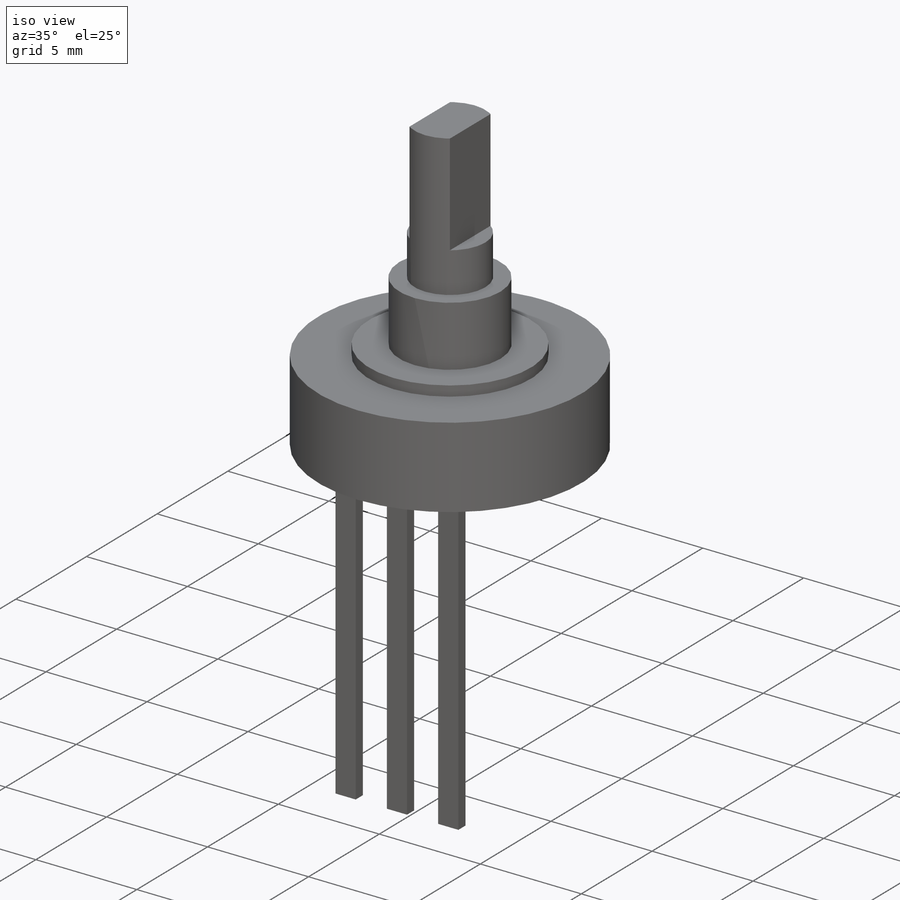
[diagram: iso view]
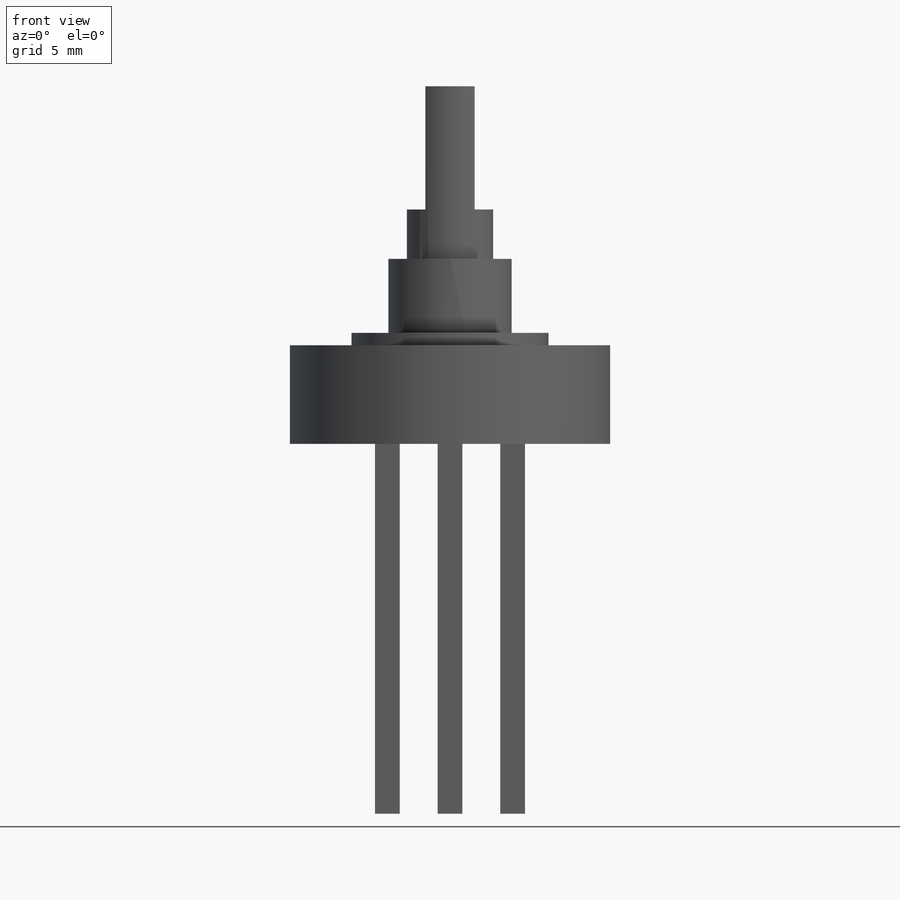
[diagram: front view]
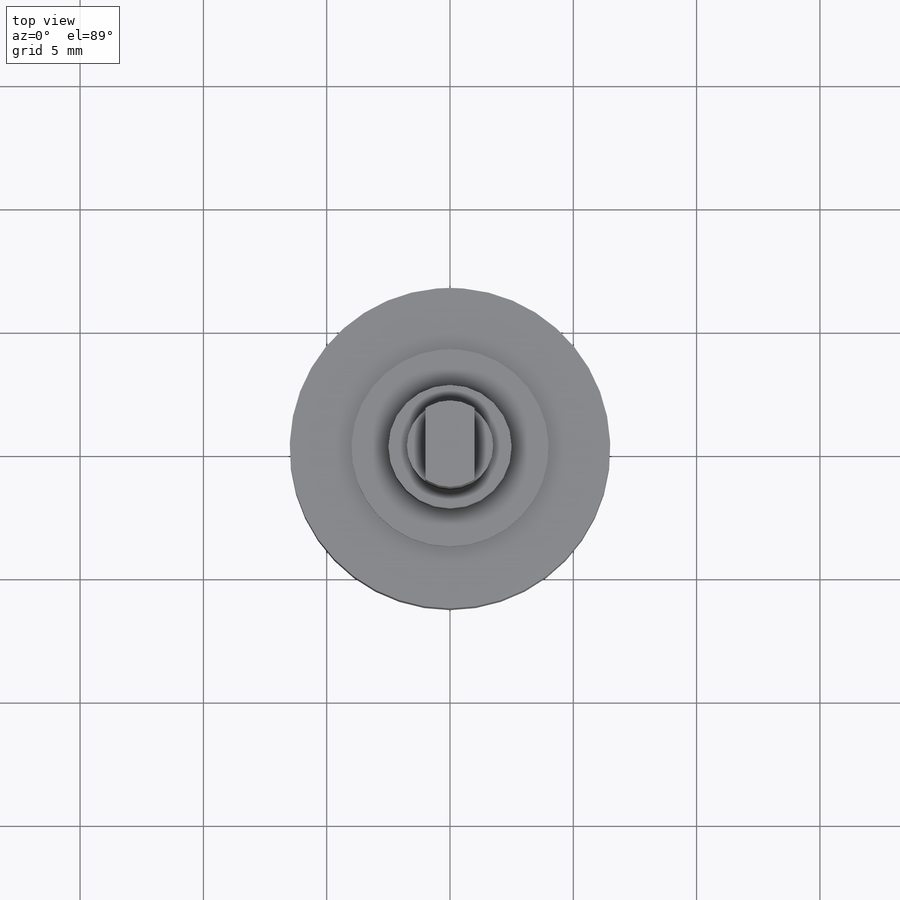
[diagram: top view]
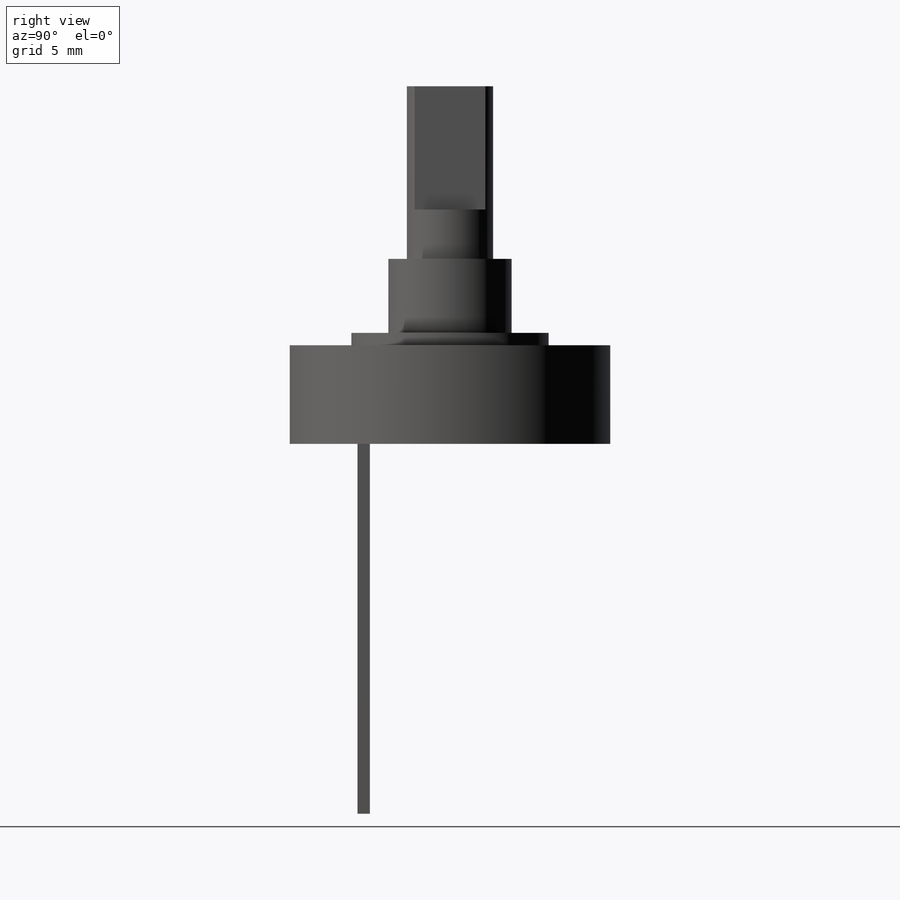
[diagram: right view]
SOLIDWORKS PART (.sldprt)
format: sldprt  version: not decoded by parser v0  size: 283,648 bytes
history: native  units: mm
features: sketch x6, extrude x5, material x1, cut_extrude x1 (+15 scaffold rows collapsed)
feature tree (28):
  scaffold x15  (default folders/planes/origin — collapsed)
  material  "Material <not specified>"
  sketch  "Sketch1"  dims[D1=3.5mm]
  extrude  "Extrude1"  Depth=7mm
  sketch  "Sketch2"  dims[D1=2.0mm]
  cut_extrude  "Cut-Extrude1"  Depth=5mm
  sketch  "Sketch3"  dims[D1=5.0mm]
  extrude  "Extrude2"  Depth=3mm
  sketch  "Sketch4"  dims[D1=8.0mm]
  extrude  "Extrude3"  Depth=0.5mm
  sketch  "Sketch5"  dims[D1=13.0mm]
  extrude  "Extrude4"  Depth=4mm
  sketch  "Sketch7"  dims[D1=0.5mm D2=0.5mm D3=0.5mm D4=3.5mm D5=1.0mm D6=1.0mm D7=1.0mm D8=2.54mm D9=2.54mm]
  extrude  "Extrude5"  Depth=15mm
decode coverage: 12 of 12 modeling features carry decoded parameters
note: suppression state not decoded; provenance and decode notes live in map.json
